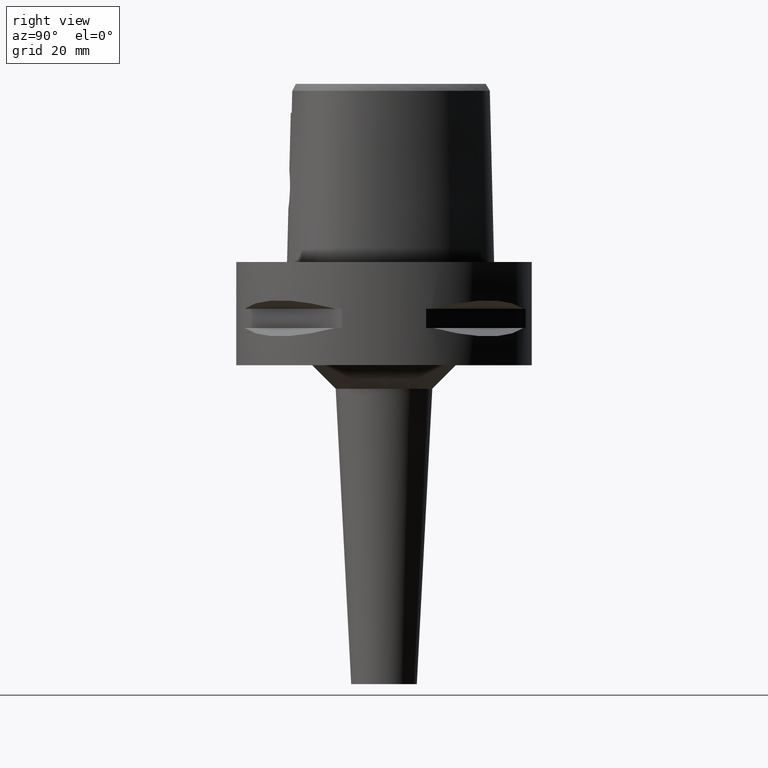
[diagram: clean part render]
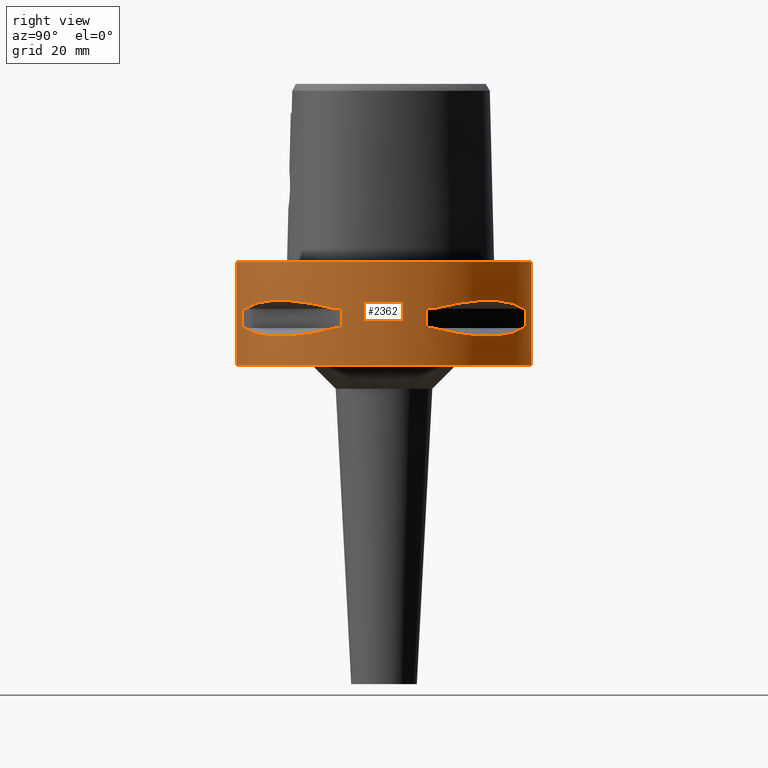
[diagram: same view with one face highlighted and labeled with its STEP entity id]
A machine part, right view. The second image highlights one B-rep face of the part: STEP entity #2362.
In plain terms, the highlighted cylindrical surface (partial cylindrical patch) has radius 31.5 mm, axis along (0, 0, -1).
Its self-contained STEP definition (entity closure, byte-faithful):
#300=CARTESIAN_POINT('',(0.E0,0.E0,0.E0));
#301=DIRECTION('',(0.E0,0.E0,-1.E0));
#302=DIRECTION('',(0.E0,1.E0,0.E0));
#303=AXIS2_PLACEMENT_3D('',#300,#301,#302);
#394=DIRECTION('',(0.E0,0.E0,-1.E0));
#395=VECTOR('',#394,2.2E1);
#396=CARTESIAN_POINT('',(0.E0,-3.15E1,0.E0));
#397=LINE('',#396,#395);
#451=DIRECTION('',(0.E0,0.E0,-1.E0));
#452=VECTOR('',#451,2.2E1);
#453=CARTESIAN_POINT('',(0.E0,3.15E1,0.E0));
#454=LINE('',#453,#452);
#458=DIRECTION('',(0.E0,0.E0,-1.E0));
#459=VECTOR('',#458,4.1E0);
#460=CARTESIAN_POINT('',(8.981198972017E0,-3.019251670572E1,-9.95E0));
#461=LINE('',#460,#459);
#465=CARTESIAN_POINT('',(1.044775724750E1,-2.971690375018E1,-1.405E1));
#466=CARTESIAN_POINT('',(1.282388988809E1,-2.888151197365E1,-1.467900482380E1));
#467=CARTESIAN_POINT('',(1.711282138769E1,-2.674739463903E1,-1.555870402293E1));
#468=CARTESIAN_POINT('',(2.244574140438E1,-2.244574140438E1,-1.597971692371E1));
#469=CARTESIAN_POINT('',(2.674739463903E1,-1.711282138769E1,-1.555870402293E1));
#470=CARTESIAN_POINT('',(2.888151197365E1,-1.282388988809E1,-1.467900482380E1));
#471=CARTESIAN_POINT('',(2.971690375018E1,-1.044775724750E1,-1.405E1));
#476=DIRECTION('',(0.E0,0.E0,1.E0));
#477=VECTOR('',#476,4.1E0);
#478=CARTESIAN_POINT('',(3.019251670572E1,-8.981198972017E0,-1.405E1));
#479=LINE('',#478,#477);
#483=DIRECTION('',(0.E0,0.E0,-1.E0));
#484=VECTOR('',#483,4.1E0);
#485=CARTESIAN_POINT('',(3.019251670572E1,8.981198972017E0,-9.95E0));
#486=LINE('',#485,#484);
#490=CARTESIAN_POINT('',(2.971690375018E1,1.044775724750E1,-1.405E1));
#491=CARTESIAN_POINT('',(2.888151197365E1,1.282388988809E1,-1.467900482380E1));
#492=CARTESIAN_POINT('',(2.674739463903E1,1.711282138769E1,-1.555870402293E1));
#493=CARTESIAN_POINT('',(2.244574140438E1,2.244574140438E1,-1.597971692371E1));
#494=CARTESIAN_POINT('',(1.711282138769E1,2.674739463903E1,-1.555870402293E1));
#495=CARTESIAN_POINT('',(1.282388988809E1,2.888151197365E1,-1.467900482380E1));
#496=CARTESIAN_POINT('',(1.044775724750E1,2.971690375018E1,-1.405E1));
#501=DIRECTION('',(0.E0,0.E0,1.E0));
#502=VECTOR('',#501,4.1E0);
#503=CARTESIAN_POINT('',(8.981198972017E0,3.019251670572E1,-1.405E1));
#504=LINE('',#503,#502);
#508=CARTESIAN_POINT('',(0.E0,0.E0,-2.2E1));
#509=DIRECTION('',(0.E0,0.E0,1.E0));
#510=DIRECTION('',(0.E0,-1.E0,0.E0));
#511=AXIS2_PLACEMENT_3D('',#508,#509,#510);
#1130=CARTESIAN_POINT('',(1.044775724750E1,-2.971690375018E1,
-9.950000000001E0));
#1131=CARTESIAN_POINT('',(1.282388988809E1,-2.888151197365E1,
-9.320995176200E0));
#1132=CARTESIAN_POINT('',(1.711282138769E1,-2.674739463903E1,
-8.441295977077E0));
#1133=CARTESIAN_POINT('',(2.244574140438E1,-2.244574140438E1,
-8.020283076297E0));
#1134=CARTESIAN_POINT('',(2.674739463903E1,-1.711282138769E1,
-8.441295977077E0));
#1135=CARTESIAN_POINT('',(2.888151197365E1,-1.282388988809E1,
-9.320995176200E0));
#1136=CARTESIAN_POINT('',(2.971690375018E1,-1.044775724750E1,
-9.950000000001E0));
#1141=CARTESIAN_POINT('',(0.E0,0.E0,-9.95E0));
#1142=DIRECTION('',(0.E0,0.E0,1.E0));
#1143=DIRECTION('',(9.433937698469E-1,-3.316748332541E-1,0.E0));
#1144=AXIS2_PLACEMENT_3D('',#1141,#1142,#1143);
#1149=CARTESIAN_POINT('',(0.E0,0.E0,-9.95E0));
#1150=DIRECTION('',(0.E0,0.E0,1.E0));
#1151=DIRECTION('',(2.851174276832E-1,-9.584925938323E-1,0.E0));
#1152=AXIS2_PLACEMENT_3D('',#1149,#1150,#1151);
#1171=CARTESIAN_POINT('',(0.E0,0.E0,-1.405E1));
#1172=DIRECTION('',(0.E0,0.E0,-1.E0));
#1173=DIRECTION('',(9.584925938323E-1,-2.851174276832E-1,0.E0));
#1174=AXIS2_PLACEMENT_3D('',#1171,#1172,#1173);
#1179=CARTESIAN_POINT('',(0.E0,0.E0,-1.405E1));
#1180=DIRECTION('',(0.E0,0.E0,-1.E0));
#1181=DIRECTION('',(3.316748332541E-1,-9.433937698469E-1,0.E0));
#1182=AXIS2_PLACEMENT_3D('',#1179,#1180,#1181);
#1201=CARTESIAN_POINT('',(2.971690375018E1,1.044775724750E1,-9.950000000001E0));
#1202=CARTESIAN_POINT('',(2.888151197365E1,1.282388988809E1,-9.320995176200E0));
#1203=CARTESIAN_POINT('',(2.674739463903E1,1.711282138769E1,-8.441295977077E0));
#1204=CARTESIAN_POINT('',(2.244574140438E1,2.244574140438E1,-8.020283076297E0));
#1205=CARTESIAN_POINT('',(1.711282138769E1,2.674739463903E1,-8.441295977077E0));
#1206=CARTESIAN_POINT('',(1.282388988809E1,2.888151197365E1,-9.320995176200E0));
#1207=CARTESIAN_POINT('',(1.044775724750E1,2.971690375018E1,-9.950000000001E0));
#1212=CARTESIAN_POINT('',(0.E0,0.E0,-9.95E0));
#1213=DIRECTION('',(0.E0,0.E0,1.E0));
#1214=DIRECTION('',(3.316748332541E-1,9.433937698469E-1,0.E0));
#1215=AXIS2_PLACEMENT_3D('',#1212,#1213,#1214);
#1220=CARTESIAN_POINT('',(0.E0,0.E0,-9.95E0));
#1221=DIRECTION('',(0.E0,0.E0,1.E0));
#1222=DIRECTION('',(9.584925938323E-1,2.851174276832E-1,0.E0));
#1223=AXIS2_PLACEMENT_3D('',#1220,#1221,#1222);
#1242=CARTESIAN_POINT('',(0.E0,0.E0,-1.405E1));
#1243=DIRECTION('',(0.E0,0.E0,-1.E0));
#1244=DIRECTION('',(2.851174276832E-1,9.584925938323E-1,0.E0));
#1245=AXIS2_PLACEMENT_3D('',#1242,#1243,#1244);
#1250=CARTESIAN_POINT('',(0.E0,0.E0,-1.405E1));
#1251=DIRECTION('',(0.E0,0.E0,-1.E0));
#1252=DIRECTION('',(9.433937698469E-1,3.316748332541E-1,0.E0));
#1253=AXIS2_PLACEMENT_3D('',#1250,#1251,#1252);
#1440=CARTESIAN_POINT('',(0.E0,-3.15E1,0.E0));
#1441=CARTESIAN_POINT('',(0.E0,3.15E1,0.E0));
#1442=VERTEX_POINT('',#1440);
#1443=VERTEX_POINT('',#1441);
#1444=CARTESIAN_POINT('',(0.E0,3.15E1,-2.2E1));
#1445=VERTEX_POINT('',#1444);
#1446=CARTESIAN_POINT('',(0.E0,-3.15E1,-2.2E1));
#1447=VERTEX_POINT('',#1446);
#1474=VERTEX_POINT('',#1130);
#1475=VERTEX_POINT('',#1136);
#1476=CARTESIAN_POINT('',(8.981198972020E0,-3.019251670572E1,-9.95E0));
#1477=VERTEX_POINT('',#1476);
#1478=CARTESIAN_POINT('',(8.981198972017E0,-3.019251670572E1,-1.405E1));
#1479=VERTEX_POINT('',#1478);
#1480=CARTESIAN_POINT('',(1.044775724750E1,-2.971690375018E1,-1.405E1));
#1481=VERTEX_POINT('',#1480);
#1482=VERTEX_POINT('',#471);
#1483=CARTESIAN_POINT('',(3.019251670572E1,-8.981198972020E0,-1.405E1));
#1484=VERTEX_POINT('',#1483);
#1485=CARTESIAN_POINT('',(3.019251670572E1,-8.981198972017E0,-9.95E0));
#1486=VERTEX_POINT('',#1485);
#1487=VERTEX_POINT('',#1201);
#1488=VERTEX_POINT('',#1207);
#1489=CARTESIAN_POINT('',(3.019251670572E1,8.981198972020E0,-9.95E0));
#1490=VERTEX_POINT('',#1489);
#1491=CARTESIAN_POINT('',(3.019251670572E1,8.981198972017E0,-1.405E1));
#1492=VERTEX_POINT('',#1491);
#1493=CARTESIAN_POINT('',(2.971690375018E1,1.044775724750E1,-1.405E1));
#1494=VERTEX_POINT('',#1493);
#1495=VERTEX_POINT('',#496);
#1496=CARTESIAN_POINT('',(8.981198972020E0,3.019251670572E1,-1.405E1));
#1497=VERTEX_POINT('',#1496);
#1498=CARTESIAN_POINT('',(8.981198972017E0,3.019251670572E1,-9.95E0));
#1499=VERTEX_POINT('',#1498);
#2314=CARTESIAN_POINT('',(0.E0,0.E0,4.5E0));
#2315=DIRECTION('',(0.E0,0.E0,-1.E0));
#2316=DIRECTION('',(0.E0,-1.E0,0.E0));
#2317=AXIS2_PLACEMENT_3D('',#2314,#2315,#2316);
#2318=CYLINDRICAL_SURFACE('',#2317,3.15E1);
#2319=ORIENTED_EDGE('',*,*,#2268,.T.);
#2321=ORIENTED_EDGE('',*,*,#2320,.F.);
#2322=ORIENTED_EDGE('',*,*,#2271,.F.);
#2323=ORIENTED_EDGE('',*,*,#2253,.F.);
#2324=EDGE_LOOP('',(#2319,#2321,#2322,#2323));
#2325=FACE_OUTER_BOUND('',#2324,.F.);
#2327=ORIENTED_EDGE('',*,*,#2326,.F.);
#2329=ORIENTED_EDGE('',*,*,#2328,.F.);
#2331=ORIENTED_EDGE('',*,*,#2330,.T.);
#2333=ORIENTED_EDGE('',*,*,#2332,.F.);
#2335=ORIENTED_EDGE('',*,*,#2334,.T.);
#2337=ORIENTED_EDGE('',*,*,#2336,.F.);
#2339=ORIENTED_EDGE('',*,*,#2338,.T.);
#2341=ORIENTED_EDGE('',*,*,#2340,.F.);
#2342=EDGE_LOOP('',(#2327,#2329,#2331,#2333,#2335,#2337,#2339,#2341));
#2343=FACE_BOUND('',#2342,.F.);
#2345=ORIENTED_EDGE('',*,*,#2344,.F.);
#2347=ORIENTED_EDGE('',*,*,#2346,.F.);
#2349=ORIENTED_EDGE('',*,*,#2348,.T.);
#2351=ORIENTED_EDGE('',*,*,#2350,.F.);
#2353=ORIENTED_EDGE('',*,*,#2352,.T.);
#2355=ORIENTED_EDGE('',*,*,#2354,.F.);
#2357=ORIENTED_EDGE('',*,*,#2356,.T.);
#2359=ORIENTED_EDGE('',*,*,#2358,.F.);
#2360=EDGE_LOOP('',(#2345,#2347,#2349,#2351,#2353,#2355,#2357,#2359));
#2361=FACE_BOUND('',#2360,.F.);
#304=CIRCLE('',#303,3.15E1);
#472=B_SPLINE_CURVE_WITH_KNOTS('',3,(#465,#466,#467,#468,#469,#470,#471),
.UNSPECIFIED.,.F.,.F.,(4,1,1,1,4),(0.E0,2.5E-1,5.E-1,7.5E-1,1.E0),
.UNSPECIFIED.);
#497=B_SPLINE_CURVE_WITH_KNOTS('',3,(#490,#491,#492,#493,#494,#495,#496),
.UNSPECIFIED.,.F.,.F.,(4,1,1,1,4),(0.E0,2.5E-1,5.E-1,7.5E-1,1.E0),
.UNSPECIFIED.);
#512=CIRCLE('',#511,3.15E1);
#1137=B_SPLINE_CURVE_WITH_KNOTS('',3,(#1130,#1131,#1132,#1133,#1134,#1135,
#1136),.UNSPECIFIED.,.F.,.F.,(4,1,1,1,4),(0.E0,2.5E-1,5.E-1,7.5E-1,1.E0),
.UNSPECIFIED.);
#1145=CIRCLE('',#1144,3.15E1);
#1153=CIRCLE('',#1152,3.15E1);
#1175=CIRCLE('',#1174,3.15E1);
#1183=CIRCLE('',#1182,3.15E1);
#1208=B_SPLINE_CURVE_WITH_KNOTS('',3,(#1201,#1202,#1203,#1204,#1205,#1206,
#1207),.UNSPECIFIED.,.F.,.F.,(4,1,1,1,4),(0.E0,2.5E-1,5.E-1,7.5E-1,1.E0),
.UNSPECIFIED.);
#1216=CIRCLE('',#1215,3.15E1);
#1224=CIRCLE('',#1223,3.15E1);
#1246=CIRCLE('',#1245,3.15E1);
#1254=CIRCLE('',#1253,3.15E1);
#2253=EDGE_CURVE('',#1443,#1442,#304,.T.);
#2268=EDGE_CURVE('',#1443,#1445,#454,.T.);
#2271=EDGE_CURVE('',#1442,#1447,#397,.T.);
#2320=EDGE_CURVE('',#1447,#1445,#512,.T.);
#2326=EDGE_CURVE('',#1474,#1475,#1137,.T.);
#2328=EDGE_CURVE('',#1477,#1474,#1153,.T.);
#2330=EDGE_CURVE('',#1477,#1479,#461,.T.);
#2332=EDGE_CURVE('',#1481,#1479,#1183,.T.);
#2334=EDGE_CURVE('',#1481,#1482,#472,.T.);
#2336=EDGE_CURVE('',#1484,#1482,#1175,.T.);
#2338=EDGE_CURVE('',#1484,#1486,#479,.T.);
#2340=EDGE_CURVE('',#1475,#1486,#1145,.T.);
#2344=EDGE_CURVE('',#1487,#1488,#1208,.T.);
#2346=EDGE_CURVE('',#1490,#1487,#1224,.T.);
#2348=EDGE_CURVE('',#1490,#1492,#486,.T.);
#2350=EDGE_CURVE('',#1494,#1492,#1254,.T.);
#2352=EDGE_CURVE('',#1494,#1495,#497,.T.);
#2354=EDGE_CURVE('',#1497,#1495,#1246,.T.);
#2356=EDGE_CURVE('',#1497,#1499,#504,.T.);
#2358=EDGE_CURVE('',#1488,#1499,#1216,.T.);
#2362=ADVANCED_FACE('',(#2325,#2343,#2361),#2318,.T.);